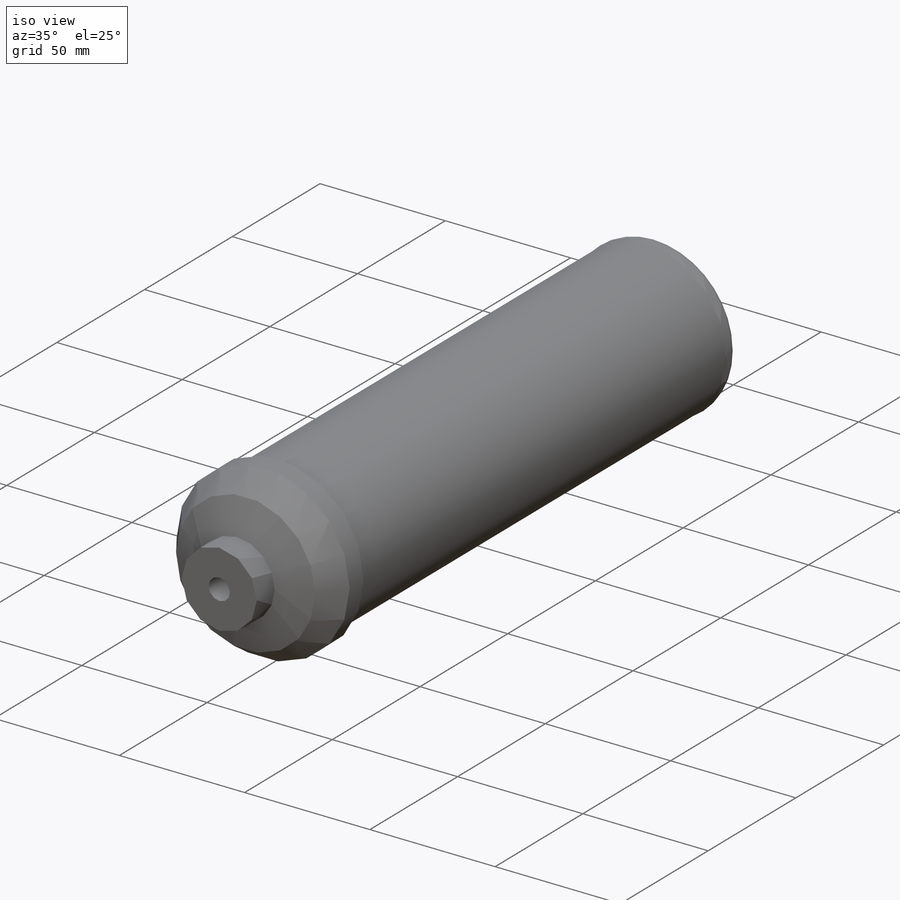
[diagram: iso view]
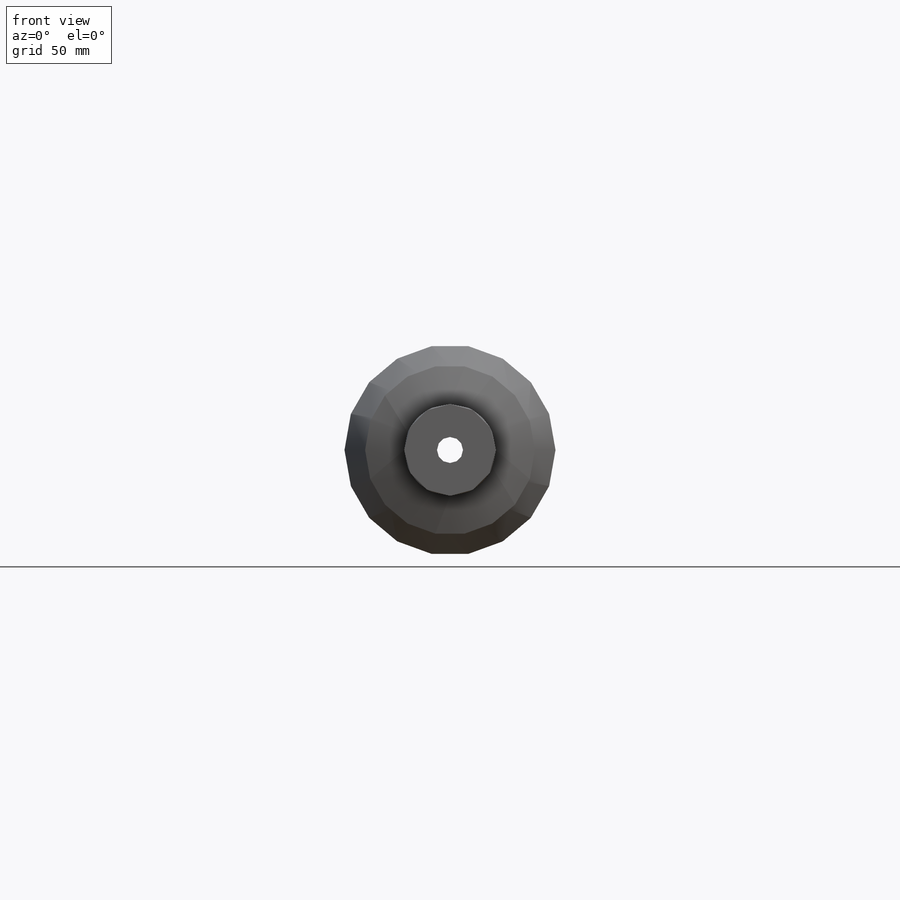
[diagram: front view]
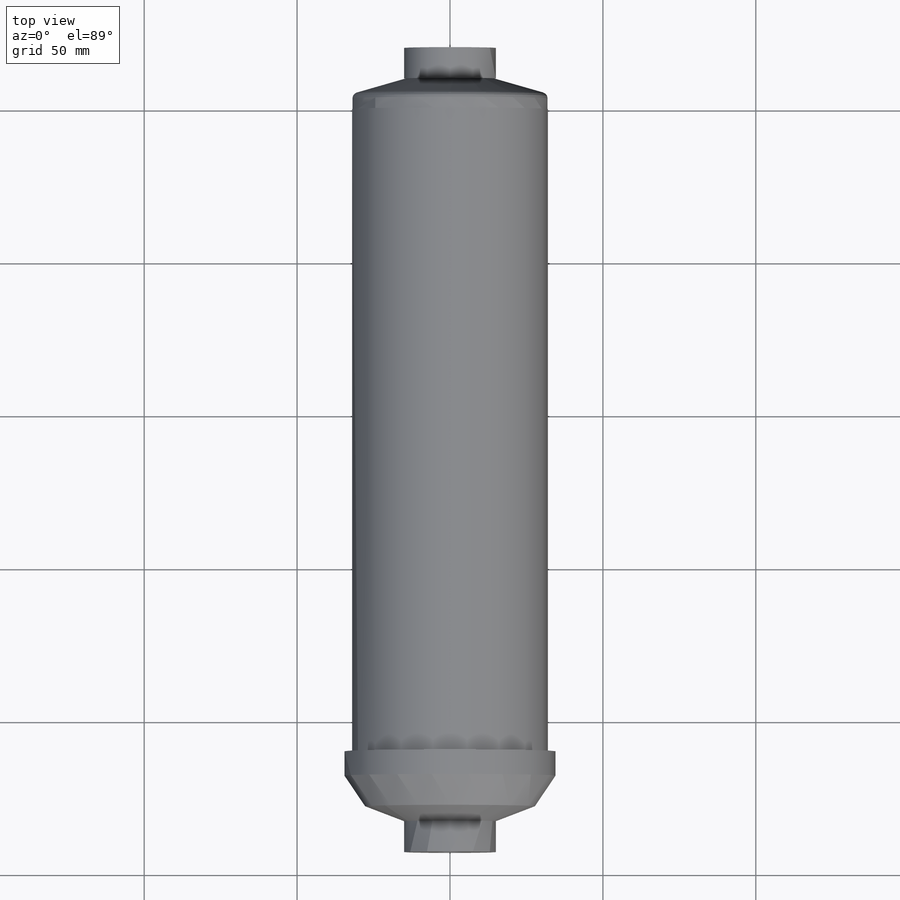
[diagram: top view]
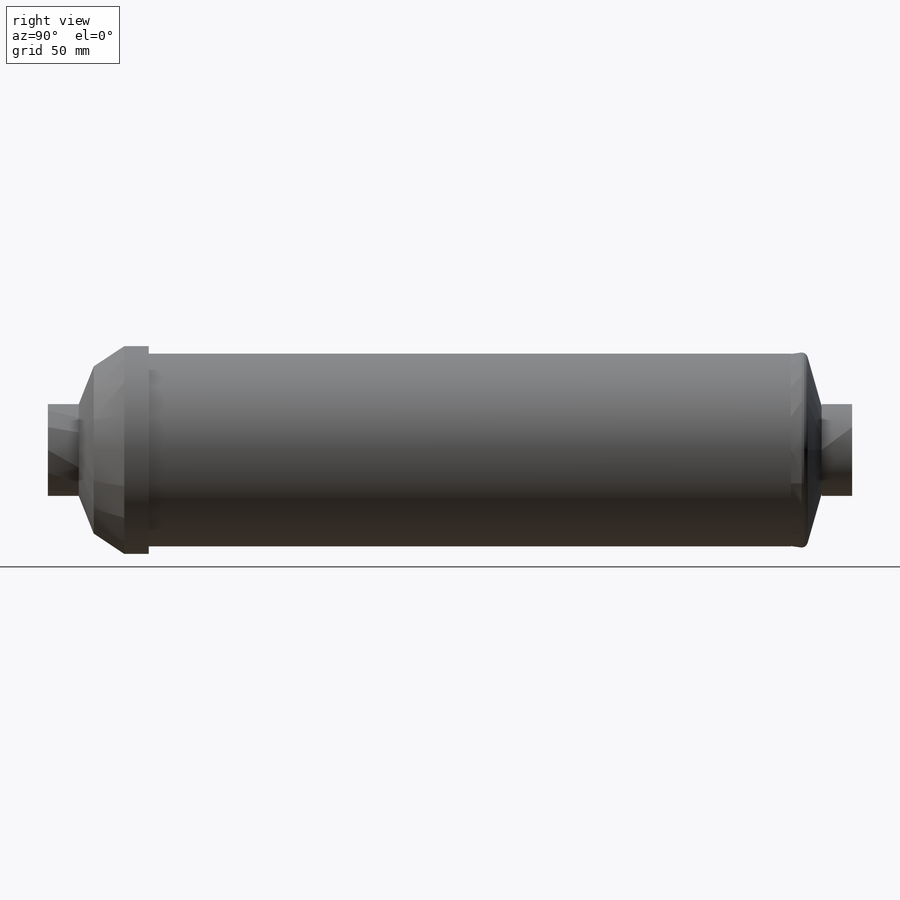
[diagram: right view]
SOLIDWORKS PART (.sldprt)
format: sldprt  version: not decoded by parser v0  size: 261,632 bytes
history: native  units: mm
features: sketch x8, extrude x6, chamfer x3, cut_extrude x2, material x1, fillet x1 (+13 scaffold rows collapsed)
feature tree (34):
  scaffold x13  (default folders/planes/origin — collapsed)
  material  "Material <not specified>"
  sketch  "Sketch1"  dims[D1=64.0mm]
  extrude  "Boss-Extrude1"  Depth=210mm
  sketch  "Sketch2"  dims[D1=69.0mm]
  extrude  "Boss-Extrude2"  Depth=18mm
  chamfer  "Chamfer1"  Distance=10mm Angle=34deg
  sketch  "Sketch3"
  extrude  "Boss-Extrude3"  Depth=5mm
  sketch  "Sketch4"  dims[D1=30.0mm]
  extrude  "Boss-Extrude4"  Depth=10mm
  sketch  "Sketch5"  dims[D1=8.5mm]
  cut_extrude  "Cut-Extrude1"  Depth=854mm
  chamfer  "Chamfer2"  Distance=5mm Angle=69deg
  sketch  "Sketch7"  dims[D1=0.1mm]
  extrude  "Boss-Extrude7"  Depth=10mm
  chamfer  "Chamfer3"  Distance=5mm Angle=74deg
  fillet  "Fillet1"  Radius=2mm
  sketch  "Sketch8"  dims[D1=30.0mm]
  extrude  "Boss-Extrude8"  Depth=10mm
  sketch  "Sketch9"  dims[D1=8.5mm]
  cut_extrude  "Cut-Extrude2"  Depth=311mm
decode coverage: 19 of 20 modeling features carry decoded parameters
note: suppression state not decoded; provenance and decode notes live in map.json
